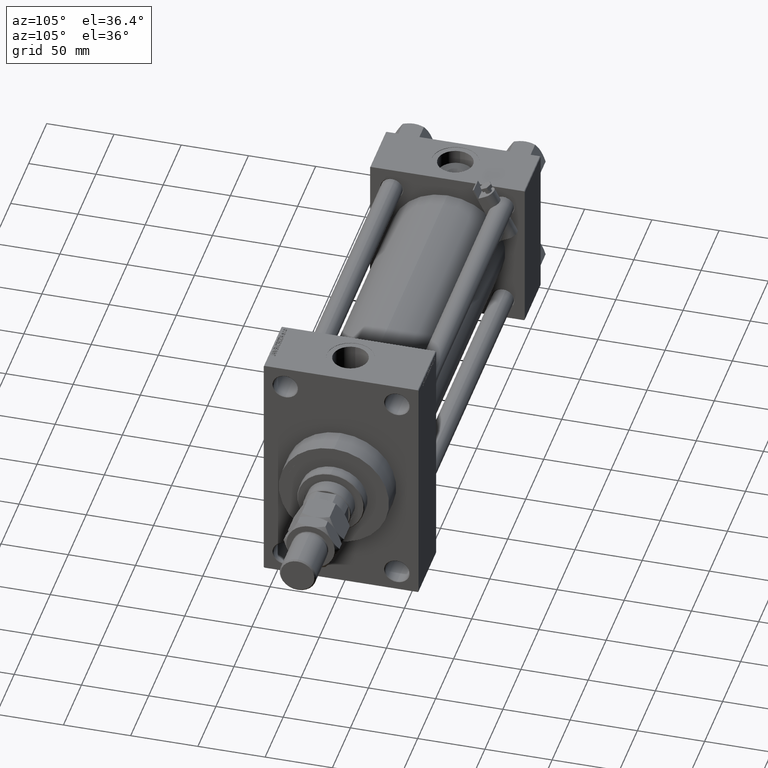
[diagram: clean part render]
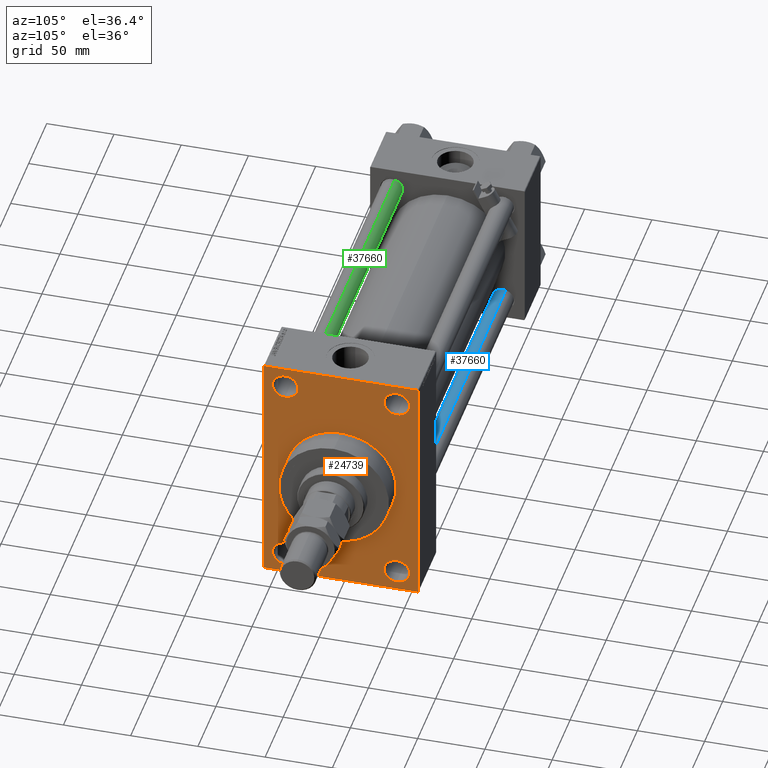
[diagram: same view with three faces highlighted in distinct colors, each labeled with its STEP entity id]
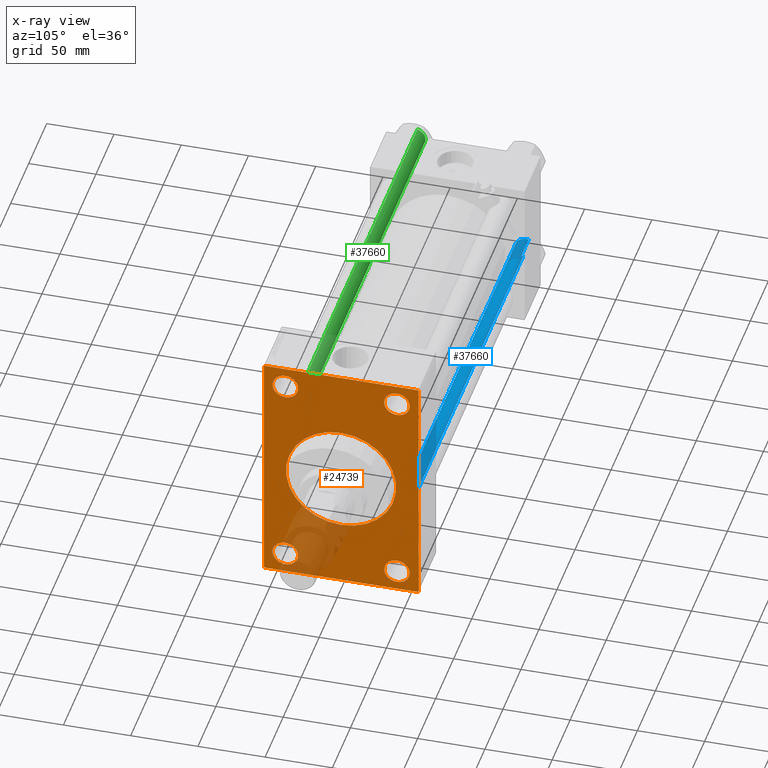
[diagram: x-ray of the same camera — body ghosted, the three highlighted faces saturated]
A machine part, auxiliary view with three faces highlighted in distinct colors.
The next image is the same camera in x-ray (body ghosted, the three faces saturated) — at least one of them is partly hidden behind the body in this view.
Their STEP definitions:

[orange] entity #24739 — the highlighted planar face has unit normal (-1, 0, 0).
#143 = EDGE_CURVE ( 'NONE', #41297, #20478, #19051, .T. ) ;
#797 = VERTEX_POINT ( 'NONE', #1139 ) ;
#1092 = CARTESIAN_POINT ( 'NONE',  ( 338.9999999999999432, 57.49999999999997868, -89.49999999999995737 ) ) ;
#1139 = CARTESIAN_POINT ( 'NONE',  ( 338.9999999999999432, -41.49999999999999289, -65.00000000000008527 ) ) ;
#1472 = AXIS2_PLACEMENT_3D ( 'NONE', #19507, #3225, #18762 ) ;
#1597 = EDGE_CURVE ( 'NONE', #20511, #37799, #40375, .T. ) ;
#2106 = EDGE_LOOP ( 'NONE', ( #48571, #43216 ) ) ;
#2514 = CIRCLE ( 'NONE', #49706, 41.00000000000000000 ) ;
#2536 = EDGE_CURVE ( 'NONE', #7579, #32684, #2514, .T. ) ;
#2899 = PLANE ( 'NONE',  #42276 ) ;
#2975 = AXIS2_PLACEMENT_3D ( 'NONE', #10393, #45304, #33345 ) ;
#3225 = DIRECTION ( 'NONE',  ( -1.000000000000000000, 0.000000000000000000, -0.000000000000000000 ) ) ;
#3270 = CARTESIAN_POINT ( 'NONE',  ( 338.9999999999999432, -57.50000000000002132, 89.49999999999997158 ) ) ;
#3315 = EDGE_CURVE ( 'NONE', #46807, #15173, #15325, .T. ) ;
#3662 = EDGE_LOOP ( 'NONE', ( #50182, #10786, #42655, #44191, #15019, #28135, #33000, #24848 ) ) ;
#3912 = EDGE_LOOP ( 'NONE', ( #18363, #21133 ) ) ;
#3916 = EDGE_CURVE ( 'NONE', #12288, #28772, #39901, .T. ) ;
#4136 = EDGE_LOOP ( 'NONE', ( #22436, #34662 ) ) ;
#4623 = DIRECTION ( 'NONE',  ( 0.000000000000000000, 0.000000000000000000, 1.000000000000000000 ) ) ;
#4773 = CARTESIAN_POINT ( 'NONE',  ( 338.9999999999999432, 57.49999999999997158, 89.99999999999998579 ) ) ;
#4838 = DIRECTION ( 'NONE',  ( 0.000000000000000000, 0.000000000000000000, -1.000000000000000000 ) ) ;
#5309 = CARTESIAN_POINT ( 'NONE',  ( 338.9999999999999432, 41.50000000000000711, -74.50000000000000000 ) ) ;
#6318 = ORIENTED_EDGE ( 'NONE', *, *, #48266, .T. ) ;
#6469 = EDGE_LOOP ( 'NONE', ( #37234, #6318 ) ) ;
#6484 = VERTEX_POINT ( 'NONE', #31992 ) ;
#6695 = ORIENTED_EDGE ( 'NONE', *, *, #17989, .T. ) ;
#6989 = CARTESIAN_POINT ( 'NONE',  ( 338.9999999999999432, 56.99999999999992184, 89.99999999999998579 ) ) ;
#7173 = CIRCLE ( 'NONE', #1472, 9.500000000000063949 ) ;
#7204 = FACE_OUTER_BOUND ( 'NONE', #3662, .T. ) ;
#7579 = VERTEX_POINT ( 'NONE', #12627 ) ;
#7686 = CARTESIAN_POINT ( 'NONE',  ( 338.9999999999999432, -41.49999999999999289, 84.00000000000007105 ) ) ;
#7949 = DIRECTION ( 'NONE',  ( 0.000000000000000000, 0.000000000000000000, -1.000000000000000000 ) ) ;
#8156 = CARTESIAN_POINT ( 'NONE',  ( 338.9999999999999432, -41.49999999999999289, -74.49999999999998579 ) ) ;
#8401 = FACE_BOUND ( 'NONE', #35503, .T. ) ;
#8593 = CARTESIAN_POINT ( 'NONE',  ( 338.9999999999999432, 57.49999999999997158, 89.49999999999998579 ) ) ;
#9893 = DIRECTION ( 'NONE',  ( -1.000000000000000000, 0.000000000000000000, -0.000000000000000000 ) ) ;
#10393 = CARTESIAN_POINT ( 'NONE',  ( 338.9999999999999432, -41.49999999999999289, 74.50000000000001421 ) ) ;
#10403 = VERTEX_POINT ( 'NONE', #32548 ) ;
#10786 = ORIENTED_EDGE ( 'NONE', *, *, #3315, .T. ) ;
#11108 = CIRCLE ( 'NONE', #46022, 9.499999999999896971 ) ;
#11451 = VERTEX_POINT ( 'NONE', #43447 ) ;
#12225 = FACE_BOUND ( 'NONE', #2106, .T. ) ;
#12246 = VECTOR ( 'NONE', #22718, 1000.000000000000114 ) ;
#12288 = VERTEX_POINT ( 'NONE', #21341 ) ;
#12453 = VERTEX_POINT ( 'NONE', #38887 ) ;
#12627 = CARTESIAN_POINT ( 'NONE',  ( 338.9999999999999432, 5.021051876504148963E-15, -41.00000000000000000 ) ) ;
#12689 = CARTESIAN_POINT ( 'NONE',  ( 338.9999999999999432, 57.49999999999997158, 89.99999999999998579 ) ) ;
#14402 = EDGE_CURVE ( 'NONE', #6484, #22535, #36355, .T. ) ;
#15019 = ORIENTED_EDGE ( 'NONE', *, *, #35325, .F. ) ;
#15173 = VERTEX_POINT ( 'NONE', #19154 ) ;
#15177 = AXIS2_PLACEMENT_3D ( 'NONE', #5309, #20847, #44292 ) ;
#15325 = LINE ( 'NONE', #30873, #12246 ) ;
#15596 = LINE ( 'NONE', #47175, #39949 ) ;
#16051 = DIRECTION ( 'NONE',  ( 0.000000000000000000, 0.000000000000000000, 1.000000000000000000 ) ) ;
#17212 = CIRCLE ( 'NONE', #42429, 9.500000000000063949 ) ;
#17391 = VECTOR ( 'NONE', #47288, 1000.000000000000000 ) ;
#17433 = EDGE_CURVE ( 'NONE', #10403, #25280, #47677, .T. ) ;
#17570 = EDGE_CURVE ( 'NONE', #22535, #6484, #40388, .T. ) ;
#17801 = DIRECTION ( 'NONE',  ( -1.000000000000000000, 0.000000000000000000, -0.000000000000000000 ) ) ;
#17824 = DIRECTION ( 'NONE',  ( 0.000000000000000000, 0.000000000000000000, -1.000000000000000000 ) ) ;
#17989 = EDGE_CURVE ( 'NONE', #25280, #10403, #36350, .T. ) ;
#18363 = ORIENTED_EDGE ( 'NONE', *, *, #20217, .F. ) ;
#18433 = CARTESIAN_POINT ( 'NONE',  ( 338.9999999999999432, 0.000000000000000000, 0.000000000000000000 ) ) ;
#18762 = DIRECTION ( 'NONE',  ( 0.000000000000000000, 0.000000000000000000, 1.000000000000000000 ) ) ;
#18784 = AXIS2_PLACEMENT_3D ( 'NONE', #21618, #17801, #25452 ) ;
#18855 = VECTOR ( 'NONE', #22685, 1000.000000000000000 ) ;
#19051 = LINE ( 'NONE', #3270, #29250 ) ;
#19081 = CARTESIAN_POINT ( 'NONE',  ( 338.9999999999999432, 41.50000000000000711, -64.99999999999992895 ) ) ;
#19154 = CARTESIAN_POINT ( 'NONE',  ( 338.9999999999999432, -57.00000000000002132, -90.00000000000001421 ) ) ;
#19298 = DIRECTION ( 'NONE',  ( -0.000000000000000000, -0.7071067811865131558, -0.7071067811865818786 ) ) ;
#19507 = CARTESIAN_POINT ( 'NONE',  ( 338.9999999999999432, 41.50000000000000711, 74.50000000000001421 ) ) ;
#19543 = VECTOR ( 'NONE', #23127, 1000.000000000000000 ) ;
#20217 = EDGE_CURVE ( 'NONE', #32684, #7579, #48642, .T. ) ;
#20247 = VERTEX_POINT ( 'NONE', #20625 ) ;
#20478 = VERTEX_POINT ( 'NONE', #30293 ) ;
#20511 = VERTEX_POINT ( 'NONE', #8593 ) ;
#20625 = CARTESIAN_POINT ( 'NONE',  ( 338.9999999999999432, 41.50000000000000711, 84.00000000000007105 ) ) ;
#20668 = EDGE_CURVE ( 'NONE', #20247, #11451, #7173, .T. ) ;
#20847 = DIRECTION ( 'NONE',  ( -1.000000000000000000, 0.000000000000000000, -0.000000000000000000 ) ) ;
#21133 = ORIENTED_EDGE ( 'NONE', *, *, #2536, .F. ) ;
#21341 = CARTESIAN_POINT ( 'NONE',  ( 338.9999999999999432, 57.00000000000003553, -90.00000000000000000 ) ) ;
#21618 = CARTESIAN_POINT ( 'NONE',  ( 338.9999999999999432, -41.49999999999999289, -74.49999999999998579 ) ) ;
#21701 = AXIS2_PLACEMENT_3D ( 'NONE', #40725, #9893, #4623 ) ;
#22254 = FACE_BOUND ( 'NONE', #4136, .T. ) ;
#22436 = ORIENTED_EDGE ( 'NONE', *, *, #49119, .T. ) ;
#22523 = AXIS2_PLACEMENT_3D ( 'NONE', #49307, #41683, #44740 ) ;
#22535 = VERTEX_POINT ( 'NONE', #7686 ) ;
#22685 = DIRECTION ( 'NONE',  ( 0.000000000000000000, -1.000000000000000000, -1.206764157201257045E-16 ) ) ;
#22718 = DIRECTION ( 'NONE',  ( 0.000000000000000000, 0.7071067811865965336, -0.7071067811864985009 ) ) ;
#23127 = DIRECTION ( 'NONE',  ( 0.000000000000000000, -1.000000000000000000, -1.206764157201257291E-16 ) ) ;
#24131 = LINE ( 'NONE', #4773, #19543 ) ;
#24452 = CARTESIAN_POINT ( 'NONE',  ( 338.9999999999999432, 0.000000000000000000, 0.000000000000000000 ) ) ;
#24739 = ADVANCED_FACE ( 'NONE', ( #12225, #43309, #8401, #22254, #37795, #7204 ), #2899, .F. ) ;
#24848 = ORIENTED_EDGE ( 'NONE', *, *, #143, .T. ) ;
#25280 = VERTEX_POINT ( 'NONE', #19081 ) ;
#25452 = DIRECTION ( 'NONE',  ( 0.000000000000000000, 0.000000000000000000, 1.000000000000000000 ) ) ;
#25473 = CARTESIAN_POINT ( 'NONE',  ( 338.9999999999999432, 0.000000000000000000, 0.000000000000000000 ) ) ;
#26334 = CARTESIAN_POINT ( 'NONE',  ( 338.9999999999999432, 0.000000000000000000, 41.00000000000000000 ) ) ;
#26661 = AXIS2_PLACEMENT_3D ( 'NONE', #24452, #35675, #4838 ) ;
#26818 = CARTESIAN_POINT ( 'NONE',  ( 338.9999999999999432, 41.50000000000000711, 74.50000000000001421 ) ) ;
#27628 = CARTESIAN_POINT ( 'NONE',  ( 338.9999999999999432, -57.00000000000007105, 89.99999999999997158 ) ) ;
#27783 = ORIENTED_EDGE ( 'NONE', *, *, #17433, .T. ) ;
#27987 = DIRECTION ( 'NONE',  ( 0.000000000000000000, 3.854941057726238467E-17, -1.000000000000000000 ) ) ;
#28135 = ORIENTED_EDGE ( 'NONE', *, *, #1597, .T. ) ;
#28772 = VERTEX_POINT ( 'NONE', #1092 ) ;
#28906 = CARTESIAN_POINT ( 'NONE',  ( 338.9999999999999432, 56.99999999999992184, 89.99999999999998579 ) ) ;
#29250 = VECTOR ( 'NONE', #19298, 1000.000000000000000 ) ;
#29533 = CARTESIAN_POINT ( 'NONE',  ( 338.9999999999999432, -57.50000000000002132, -89.50000000000002842 ) ) ;
#30293 = CARTESIAN_POINT ( 'NONE',  ( 338.9999999999999432, -57.50000000000002132, 89.49999999999997158 ) ) ;
#30873 = CARTESIAN_POINT ( 'NONE',  ( 338.9999999999999432, -57.00000000000002132, -90.00000000000001421 ) ) ;
#31992 = CARTESIAN_POINT ( 'NONE',  ( 338.9999999999999432, -41.49999999999999289, 64.99999999999994316 ) ) ;
#32287 = EDGE_CURVE ( 'NONE', #12453, #797, #11108, .T. ) ;
#32548 = CARTESIAN_POINT ( 'NONE',  ( 338.9999999999999432, 41.50000000000000711, -84.00000000000005684 ) ) ;
#32684 = VERTEX_POINT ( 'NONE', #26334 ) ;
#33000 = ORIENTED_EDGE ( 'NONE', *, *, #46877, .T. ) ;
#33345 = DIRECTION ( 'NONE',  ( 0.000000000000000000, 0.000000000000000000, 1.000000000000000000 ) ) ;
#33918 = LINE ( 'NONE', #45129, #18855 ) ;
#33982 = DIRECTION ( 'NONE',  ( -0.000000000000000000, 0.000000000000000000, 1.000000000000000000 ) ) ;
#34232 = DIRECTION ( 'NONE',  ( -1.000000000000000000, 0.000000000000000000, -0.000000000000000000 ) ) ;
#34662 = ORIENTED_EDGE ( 'NONE', *, *, #20668, .T. ) ;
#35325 = EDGE_CURVE ( 'NONE', #20511, #28772, #42776, .T. ) ;
#35503 = EDGE_LOOP ( 'NONE', ( #27783, #6695 ) ) ;
#35675 = DIRECTION ( 'NONE',  ( 1.000000000000000000, 0.000000000000000000, 0.000000000000000000 ) ) ;
#36350 = CIRCLE ( 'NONE', #22523, 9.500000000000063949 ) ;
#36355 = CIRCLE ( 'NONE', #21701, 9.500000000000063949 ) ;
#37158 = VECTOR ( 'NONE', #27987, 1000.000000000000000 ) ;
#37234 = ORIENTED_EDGE ( 'NONE', *, *, #32287, .T. ) ;
#37795 = FACE_BOUND ( 'NONE', #3912, .T. ) ;
#37799 = VERTEX_POINT ( 'NONE', #6989 ) ;
#38887 = CARTESIAN_POINT ( 'NONE',  ( 338.9999999999999432, -41.49999999999999289, -83.99999999999988631 ) ) ;
#39309 = DIRECTION ( 'NONE',  ( 0.000000000000000000, 0.000000000000000000, 1.000000000000000000 ) ) ;
#39547 = DIRECTION ( 'NONE',  ( -1.000000000000000000, 0.000000000000000000, -0.000000000000000000 ) ) ;
#39901 = LINE ( 'NONE', #48041, #17391 ) ;
#39949 = VECTOR ( 'NONE', #7949, 1000.000000000000000 ) ;
#40245 = DIRECTION ( 'NONE',  ( -1.000000000000000000, 0.000000000000000000, -0.000000000000000000 ) ) ;
#40375 = LINE ( 'NONE', #28906, #50339 ) ;
#40388 = CIRCLE ( 'NONE', #2975, 9.500000000000063949 ) ;
#40725 = CARTESIAN_POINT ( 'NONE',  ( 338.9999999999999432, -41.49999999999999289, 74.50000000000001421 ) ) ;
#41297 = VERTEX_POINT ( 'NONE', #27628 ) ;
#41683 = DIRECTION ( 'NONE',  ( -1.000000000000000000, 0.000000000000000000, -0.000000000000000000 ) ) ;
#42010 = DIRECTION ( 'NONE',  ( 1.000000000000000000, 0.000000000000000000, 0.000000000000000000 ) ) ;
#42276 = AXIS2_PLACEMENT_3D ( 'NONE', #18433, #34232, #33982 ) ;
#42429 = AXIS2_PLACEMENT_3D ( 'NONE', #26818, #39547, #39309 ) ;
#42655 = ORIENTED_EDGE ( 'NONE', *, *, #49374, .F. ) ;
#42776 = LINE ( 'NONE', #12689, #37158 ) ;
#43216 = ORIENTED_EDGE ( 'NONE', *, *, #17570, .T. ) ;
#43309 = FACE_BOUND ( 'NONE', #6469, .T. ) ;
#43447 = CARTESIAN_POINT ( 'NONE',  ( 338.9999999999999432, 41.50000000000000711, 64.99999999999994316 ) ) ;
#44190 = DIRECTION ( 'NONE',  ( 0.000000000000000000, -0.7071067811865867636, 0.7071067811865081598 ) ) ;
#44191 = ORIENTED_EDGE ( 'NONE', *, *, #3916, .T. ) ;
#44292 = DIRECTION ( 'NONE',  ( 0.000000000000000000, 0.000000000000000000, 1.000000000000000000 ) ) ;
#44740 = DIRECTION ( 'NONE',  ( 0.000000000000000000, 0.000000000000000000, 1.000000000000000000 ) ) ;
#45129 = CARTESIAN_POINT ( 'NONE',  ( 338.9999999999999432, 57.49999999999997868, -90.00000000000000000 ) ) ;
#45304 = DIRECTION ( 'NONE',  ( -1.000000000000000000, 0.000000000000000000, -0.000000000000000000 ) ) ;
#46022 = AXIS2_PLACEMENT_3D ( 'NONE', #8156, #40245, #16051 ) ;
#46807 = VERTEX_POINT ( 'NONE', #29533 ) ;
#46877 = EDGE_CURVE ( 'NONE', #37799, #41297, #24131, .T. ) ;
#47175 = CARTESIAN_POINT ( 'NONE',  ( 338.9999999999999432, -57.50000000000002132, 89.99999999999997158 ) ) ;
#47288 = DIRECTION ( 'NONE',  ( -0.000000000000000000, 0.7071067811865181518, 0.7071067811865769936 ) ) ;
#47677 = CIRCLE ( 'NONE', #15177, 9.500000000000063949 ) ;
#48041 = CARTESIAN_POINT ( 'NONE',  ( 338.9999999999999432, 57.49999999999997868, -89.50000000000001421 ) ) ;
#48168 = EDGE_CURVE ( 'NONE', #20478, #46807, #15596, .T. ) ;
#48266 = EDGE_CURVE ( 'NONE', #797, #12453, #48905, .T. ) ;
#48571 = ORIENTED_EDGE ( 'NONE', *, *, #14402, .T. ) ;
#48642 = CIRCLE ( 'NONE', #26661, 41.00000000000000000 ) ;
#48905 = CIRCLE ( 'NONE', #18784, 9.499999999999896971 ) ;
#49119 = EDGE_CURVE ( 'NONE', #11451, #20247, #17212, .T. ) ;
#49307 = CARTESIAN_POINT ( 'NONE',  ( 338.9999999999999432, 41.50000000000000711, -74.50000000000000000 ) ) ;
#49374 = EDGE_CURVE ( 'NONE', #12288, #15173, #33918, .T. ) ;
#49706 = AXIS2_PLACEMENT_3D ( 'NONE', #25473, #42010, #17824 ) ;
#50182 = ORIENTED_EDGE ( 'NONE', *, *, #48168, .T. ) ;
#50339 = VECTOR ( 'NONE', #44190, 1000.000000000000000 ) ;

[blue] entity #37660 — the highlighted cylindrical surface (edge-blend (fillet) strip) has radius 8 mm, axis along (1, -0, 0).
#290 = AXIS2_PLACEMENT_3D ( 'NONE', #27855, #15885, #43403 ) ;
#1430 = CARTESIAN_POINT ( 'NONE',  ( 0.000000000000000000, 0.000000000000000000, 0.5000000000000004441 ) ) ;
#4548 = DIRECTION ( 'NONE',  ( -0.000000000000000000, -0.000000000000000000, -1.000000000000000000 ) ) ;
#6880 = EDGE_CURVE ( 'NONE', #11010, #27573, #47473, .T. ) ;
#8627 = DIRECTION ( 'NONE',  ( -0.000000000000000000, -0.000000000000000000, -1.000000000000000000 ) ) ;
#11010 = VERTEX_POINT ( 'NONE', #19574 ) ;
#12190 = CYLINDRICAL_SURFACE ( 'NONE', #32389, 8.000000000000000000 ) ;
#12436 = DIRECTION ( 'NONE',  ( -1.000000000000000000, 0.000000000000000000, 0.000000000000000000 ) ) ;
#12455 = LINE ( 'NONE', #13465, #49331 ) ;
#13465 = CARTESIAN_POINT ( 'NONE',  ( -8.000000000000000000, 0.000000000000000000, 323.0000000000000000 ) ) ;
#15885 = DIRECTION ( 'NONE',  ( 0.000000000000000000, 0.000000000000000000, -1.000000000000000000 ) ) ;
#17374 = EDGE_CURVE ( 'NONE', #27573, #18714, #12455, .T. ) ;
#18714 = VERTEX_POINT ( 'NONE', #20802 ) ;
#19574 = CARTESIAN_POINT ( 'NONE',  ( 8.000000000000000000, 9.797174393178825657E-16, 322.5000000000000000 ) ) ;
#20802 = CARTESIAN_POINT ( 'NONE',  ( -8.000000000000000000, 0.000000000000000000, 0.5000000000000004441 ) ) ;
#22316 = ORIENTED_EDGE ( 'NONE', *, *, #6880, .T. ) ;
#24822 = VERTEX_POINT ( 'NONE', #38171 ) ;
#25128 = ORIENTED_EDGE ( 'NONE', *, *, #41207, .F. ) ;
#27573 = VERTEX_POINT ( 'NONE', #45744 ) ;
#27659 = CIRCLE ( 'NONE', #31740, 8.000000000000000000 ) ;
#27855 = CARTESIAN_POINT ( 'NONE',  ( 0.000000000000000000, 0.000000000000000000, 322.5000000000000000 ) ) ;
#29125 = EDGE_LOOP ( 'NONE', ( #25128, #22316, #36964, #34825 ) ) ;
#30701 = CARTESIAN_POINT ( 'NONE',  ( 8.000000000000000000, 9.797174393178825657E-16, 323.0000000000000000 ) ) ;
#31740 = AXIS2_PLACEMENT_3D ( 'NONE', #1430, #40158, #44482 ) ;
#32389 = AXIS2_PLACEMENT_3D ( 'NONE', #39210, #4548, #12436 ) ;
#34522 = LINE ( 'NONE', #30701, #34933 ) ;
#34825 = ORIENTED_EDGE ( 'NONE', *, *, #42085, .T. ) ;
#34933 = VECTOR ( 'NONE', #37345, 1000.000000000000000 ) ;
#36964 = ORIENTED_EDGE ( 'NONE', *, *, #17374, .T. ) ;
#37345 = DIRECTION ( 'NONE',  ( -0.000000000000000000, -0.000000000000000000, -1.000000000000000000 ) ) ;
#37660 = ADVANCED_FACE ( 'NONE', ( #47336 ), #12190, .T. ) ;
#38171 = CARTESIAN_POINT ( 'NONE',  ( 8.000000000000000000, 9.797174393178825657E-16, 0.5000000000000004441 ) ) ;
#39210 = CARTESIAN_POINT ( 'NONE',  ( 0.000000000000000000, 0.000000000000000000, 323.0000000000000000 ) ) ;
#40158 = DIRECTION ( 'NONE',  ( -0.000000000000000000, -0.000000000000000000, 1.000000000000000000 ) ) ;
#41207 = EDGE_CURVE ( 'NONE', #11010, #24822, #34522, .T. ) ;
#42085 = EDGE_CURVE ( 'NONE', #18714, #24822, #27659, .T. ) ;
#43403 = DIRECTION ( 'NONE',  ( 1.000000000000000000, 0.000000000000000000, 0.000000000000000000 ) ) ;
#44482 = DIRECTION ( 'NONE',  ( 1.000000000000000000, 0.000000000000000000, 0.000000000000000000 ) ) ;
#45744 = CARTESIAN_POINT ( 'NONE',  ( -8.000000000000000000, 0.000000000000000000, 322.5000000000000000 ) ) ;
#47336 = FACE_OUTER_BOUND ( 'NONE', #29125, .T. ) ;
#47473 = CIRCLE ( 'NONE', #290, 8.000000000000000000 ) ;
#49331 = VECTOR ( 'NONE', #8627, 1000.000000000000000 ) ;

[green] entity #37660 — the highlighted cylindrical surface (edge-blend (fillet) strip) has radius 8 mm, axis along (1, 0, 0).
#290 = AXIS2_PLACEMENT_3D ( 'NONE', #27855, #15885, #43403 ) ;
#1430 = CARTESIAN_POINT ( 'NONE',  ( 0.000000000000000000, 0.000000000000000000, 0.5000000000000004441 ) ) ;
#4548 = DIRECTION ( 'NONE',  ( -0.000000000000000000, -0.000000000000000000, -1.000000000000000000 ) ) ;
#6880 = EDGE_CURVE ( 'NONE', #11010, #27573, #47473, .T. ) ;
#8627 = DIRECTION ( 'NONE',  ( -0.000000000000000000, -0.000000000000000000, -1.000000000000000000 ) ) ;
#11010 = VERTEX_POINT ( 'NONE', #19574 ) ;
#12190 = CYLINDRICAL_SURFACE ( 'NONE', #32389, 8.000000000000000000 ) ;
#12436 = DIRECTION ( 'NONE',  ( -1.000000000000000000, 0.000000000000000000, 0.000000000000000000 ) ) ;
#12455 = LINE ( 'NONE', #13465, #49331 ) ;
#13465 = CARTESIAN_POINT ( 'NONE',  ( -8.000000000000000000, 0.000000000000000000, 323.0000000000000000 ) ) ;
#15885 = DIRECTION ( 'NONE',  ( 0.000000000000000000, 0.000000000000000000, -1.000000000000000000 ) ) ;
#17374 = EDGE_CURVE ( 'NONE', #27573, #18714, #12455, .T. ) ;
#18714 = VERTEX_POINT ( 'NONE', #20802 ) ;
#19574 = CARTESIAN_POINT ( 'NONE',  ( 8.000000000000000000, 9.797174393178825657E-16, 322.5000000000000000 ) ) ;
#20802 = CARTESIAN_POINT ( 'NONE',  ( -8.000000000000000000, 0.000000000000000000, 0.5000000000000004441 ) ) ;
#22316 = ORIENTED_EDGE ( 'NONE', *, *, #6880, .T. ) ;
#24822 = VERTEX_POINT ( 'NONE', #38171 ) ;
#25128 = ORIENTED_EDGE ( 'NONE', *, *, #41207, .F. ) ;
#27573 = VERTEX_POINT ( 'NONE', #45744 ) ;
#27659 = CIRCLE ( 'NONE', #31740, 8.000000000000000000 ) ;
#27855 = CARTESIAN_POINT ( 'NONE',  ( 0.000000000000000000, 0.000000000000000000, 322.5000000000000000 ) ) ;
#29125 = EDGE_LOOP ( 'NONE', ( #25128, #22316, #36964, #34825 ) ) ;
#30701 = CARTESIAN_POINT ( 'NONE',  ( 8.000000000000000000, 9.797174393178825657E-16, 323.0000000000000000 ) ) ;
#31740 = AXIS2_PLACEMENT_3D ( 'NONE', #1430, #40158, #44482 ) ;
#32389 = AXIS2_PLACEMENT_3D ( 'NONE', #39210, #4548, #12436 ) ;
#34522 = LINE ( 'NONE', #30701, #34933 ) ;
#34825 = ORIENTED_EDGE ( 'NONE', *, *, #42085, .T. ) ;
#34933 = VECTOR ( 'NONE', #37345, 1000.000000000000000 ) ;
#36964 = ORIENTED_EDGE ( 'NONE', *, *, #17374, .T. ) ;
#37345 = DIRECTION ( 'NONE',  ( -0.000000000000000000, -0.000000000000000000, -1.000000000000000000 ) ) ;
#37660 = ADVANCED_FACE ( 'NONE', ( #47336 ), #12190, .T. ) ;
#38171 = CARTESIAN_POINT ( 'NONE',  ( 8.000000000000000000, 9.797174393178825657E-16, 0.5000000000000004441 ) ) ;
#39210 = CARTESIAN_POINT ( 'NONE',  ( 0.000000000000000000, 0.000000000000000000, 323.0000000000000000 ) ) ;
#40158 = DIRECTION ( 'NONE',  ( -0.000000000000000000, -0.000000000000000000, 1.000000000000000000 ) ) ;
#41207 = EDGE_CURVE ( 'NONE', #11010, #24822, #34522, .T. ) ;
#42085 = EDGE_CURVE ( 'NONE', #18714, #24822, #27659, .T. ) ;
#43403 = DIRECTION ( 'NONE',  ( 1.000000000000000000, 0.000000000000000000, 0.000000000000000000 ) ) ;
#44482 = DIRECTION ( 'NONE',  ( 1.000000000000000000, 0.000000000000000000, 0.000000000000000000 ) ) ;
#45744 = CARTESIAN_POINT ( 'NONE',  ( -8.000000000000000000, 0.000000000000000000, 322.5000000000000000 ) ) ;
#47336 = FACE_OUTER_BOUND ( 'NONE', #29125, .T. ) ;
#47473 = CIRCLE ( 'NONE', #290, 8.000000000000000000 ) ;
#49331 = VECTOR ( 'NONE', #8627, 1000.000000000000000 ) ;